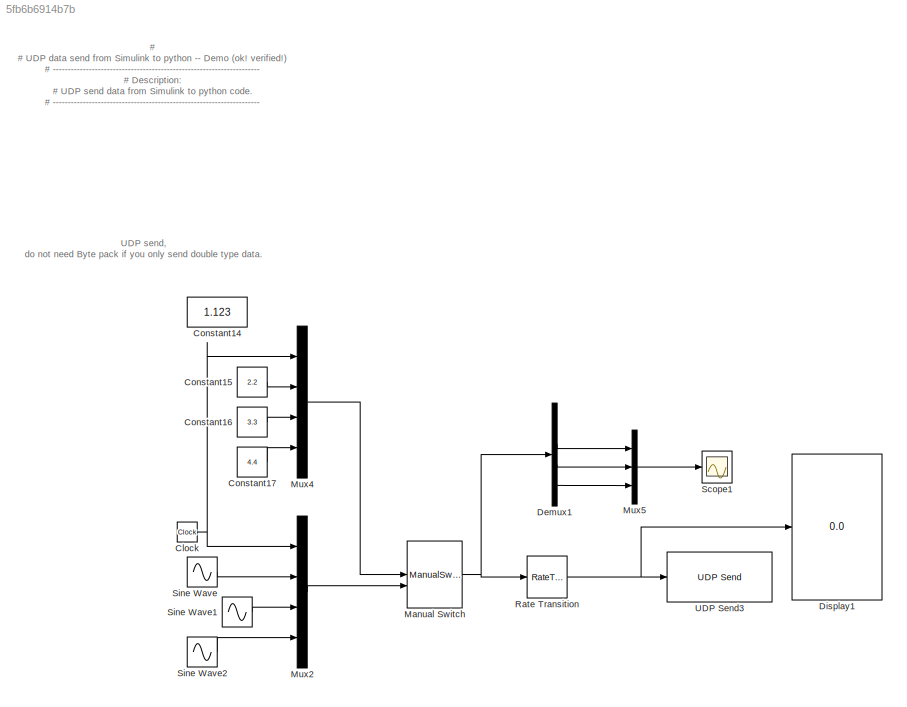
MODEL slx_5fb6b6914b7b
KIND model
CONFIG AbsTol = auto
CONFIG EnableMultiTasking = off
CONFIG FixedStep = 0.001
CONFIG MaxStep = auto
CONFIG MinStep = auto
CONFIG RelTol = 1e-3
CONFIG SampleTimeConstraint = Unconstrained
CONFIG Solver = FixedStepAuto
CONFIG SolverName = FixedStepAuto
CONFIG StartTime = 0.0
CONFIG StopTime = inf
BLOCK [Clock] Clock
BLOCK [Constant] Constant14
  Value = 1.123
BLOCK [Constant] Constant15
  Value = 2.2
BLOCK [Constant] Constant16
  Value = 3.3
BLOCK [Constant] Constant17
  Value = 4.4
BLOCK [Demux] Demux1
  Ports = [1, 4]
BLOCK [Display] Display1
  Decimation = 1
  Ports = [1]
BLOCK [ManualSwitch] Manual Switch
  CurrentSetting = 0
BLOCK [Mux] Mux2
  DisplayOption = bar
  Ports = [4, 1]
BLOCK [Mux] Mux4
  DisplayOption = bar
  Ports = [4, 1]
BLOCK [Mux] Mux5
  DisplayOption = bar
  Inputs = 3
  Ports = [3, 1]
BLOCK [RateTransition] Rate Transition
  OutPortSampleTime = 0.1
BLOCK [Scope] Scope1
  Floating = off
  NumInputPorts = 1
  Ports = [1]
  ScopeSpecificationString = Simulink.scopes.TimeScopeBlockCfg('CurrentConfiguration', extmgr.ConfigurationSet(extmgr.Configuration('Core','General UI',true),extmgr.Configuration('Core','Source UI',true),extmgr.Configuration('Sources','WiredSimulink',true),extmgr.Configuration('Visuals','Time Domain',true,'SerializedDisplays',{struct('MinYLimReal','-5.00000','MaxYLimReal','5.00000','YLabelReal','','MinYLimMag','0.00000','MaxY...<+1376ch>
BLOCK [Sin] Sine Wave
  Ports = [0, 1]
  SampleTime = 0
BLOCK [Sin] Sine Wave1
  Amplitude = 0.5
  Frequency = 2
  Ports = [0, 1]
  SampleTime = 0
BLOCK [Sin] Sine Wave2
  Frequency = 10
  Phase = pi
  Ports = [0, 1]
  SampleTime = 0
BLOCK [Reference] UDP Send3  REF=dspnetwork/UDP Send
  Ports = [1]
  SourceBlock = dspnetwork/UDP Send
  SourceProductBaseCode = SL
  SourceType = UDP Send
ANNOTATION (root): # # UDP data send from Simulink to python -- Demo (ok! verified!) # --------------------------------------------------------------------- # Description: # UDP send data from Simulink to python code. # --------------------------------------------------------------------- # teng4 modified, 2023-02-23, Thursday. # teng4 created, 2023-02-22, Wed. # #
ANNOTATION (root): UDP send, do not need Byte pack if you only send double type data.
NET Clock:1 -> Mux2:1, Mux4:1
LINE Constant15:1 -> Mux4:2
LINE Constant16:1 -> Mux4:3
LINE Constant17:1 -> Mux4:4
LINE Demux1:2 -> Mux5:1
LINE Demux1:3 -> Mux5:2
LINE Demux1:4 -> Mux5:3
NET Manual Switch:1 -> Demux1:1, Rate Transition:1
LINE Mux2:1 -> Manual Switch:2
LINE Mux4:1 -> Manual Switch:1
LINE Mux5:1 -> Scope1:1
NET Rate Transition:1 -> Display1:1, UDP Send3:1
LINE Sine Wave1:1 -> Mux2:3
LINE Sine Wave2:1 -> Mux2:4
LINE Sine Wave:1 -> Mux2:2
note: NET lines group one-source signal fan-out (src -> all destinations, sorted); 1:1 wires keep LINE
